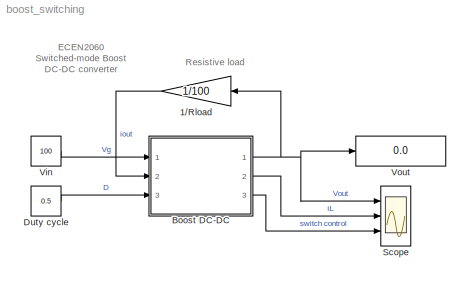
MODEL boost_switching
KIND model
BLOCK [Gain] 1//Rload
  Gain = 1/100
  OutDataTypeMode = Inherit via internal rule
  ParameterDataTypeMode = Inherit via internal rule
  SaturateOnIntegerOverflow = off
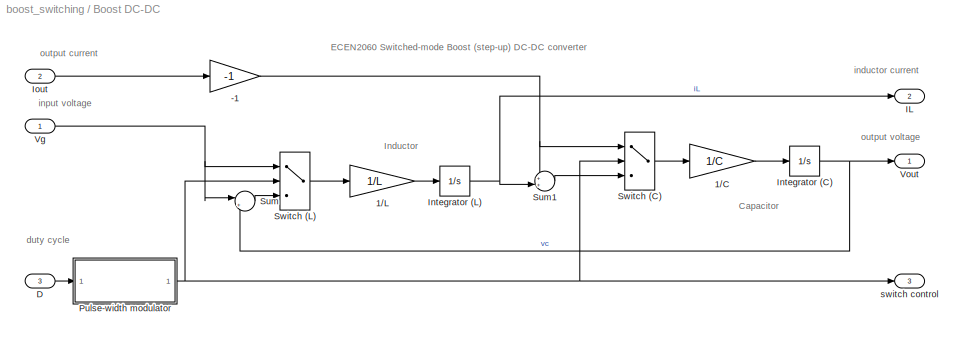
BLOCK [SubSystem] Boost DC-DC
  FunctionWithSeparateData = off
  MaskCallbackString = ||||
  MaskDescription = Switched-mode Boost (step-up) DC-DC converter (switching). The duty-cycle D determines the step-up voltage conversion ratio, Vout/Vg = 1/(1-D). The model is ideal, losses are neglected, efficiency is 100%
  MaskDisplay = text(0.5,0.75,'Boost','horizontalAlignment', 'center');\ntext(0.5,0.6,'DC-DC','horizontalAlignment', 'center');\ntext(0.5,0.45,'(switching)','horizontalAlignment', 'center');
  MaskEnableString = on,on,on,on,on
  MaskHideContents = off
  MaskIconFrame = on
  MaskIconOpaque = off
  MaskIconRotate = none
  MaskIconUnits = normalized
  MaskPromptString = Inductance|Initial inductor current|Capacitance|Initial capacitor voltage|Switching frequency
  MaskStyleString = edit,edit,edit,edit,edit
  MaskTabNameString = ,,,,
  MaskToolTipString = on,on,on,on,on
  MaskTunableValueString = on,on,on,on,on
  MaskValueString = 200e-6|4|10e-6|200|100e3
  MaskVarAliasString = ,,,,
  MaskVariables = L=@1;Io=@2;C=@3;Vo=@4;fs=@5;
  MaskVisibilityString = on,on,on,on,on
  MinAlgLoopOccurrences = off
  Ports = [3, 3]
  RTWSystemCode = Auto
BLOCK [Gain] Boost DC-DC/-1
  Gain = -1
  OutDataTypeMode = Inherit via internal rule
  ParameterDataTypeMode = Inherit via internal rule
  SaturateOnIntegerOverflow = off
BLOCK [Gain] Boost DC-DC/1//C
  Gain = 1/C
  OutDataTypeMode = Inherit via internal rule
  ParameterDataTypeMode = Inherit via internal rule
  SaturateOnIntegerOverflow = off
BLOCK [Gain] Boost DC-DC/1//L
  Gain = 1/L
  OutDataTypeMode = Inherit via internal rule
  ParameterDataTypeMode = Inherit via internal rule
  SaturateOnIntegerOverflow = off
BLOCK [Inport] Boost DC-DC/D
  IconDisplay = Port number
  Port = 3
BLOCK [Outport] Boost DC-DC/IL
  BusOutputAsStruct = off
  IconDisplay = Port number
  Port = 2
BLOCK [Integrator] Boost DC-DC/Integrator (C)
  IgnoreLimit = off
  InitialCondition = Vo
  Ports = [1, 1]
BLOCK [Integrator] Boost DC-DC/Integrator (L)
  IgnoreLimit = off
  InitialCondition = Io
  Ports = [1, 1]
BLOCK [Inport] Boost DC-DC/Iout
  IconDisplay = Port number
  Port = 2
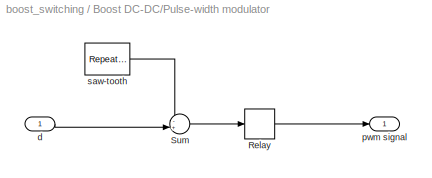
BLOCK [SubSystem] Boost DC-DC/Pulse-width modulator
  FunctionWithSeparateData = off
  MaskEnableString = on
  MaskHideContents = off
  MaskIconFrame = on
  MaskIconOpaque = on
  MaskIconRotate = none
  MaskIconUnits = autoscale
  MaskPromptString = Switching frequency
  MaskStyleString = edit
  MaskToolTipString = on
  MaskTunableValueString = on
  MaskValueString = fs
  MaskVariables = Fs=@1;
  MaskVisibilityString = on
  MinAlgLoopOccurrences = off
  Ports = [1, 1]
  RTWSystemCode = Auto
BLOCK [Relay] Boost DC-DC/Pulse-width modulator/Relay
BLOCK [Sum] Boost DC-DC/Pulse-width modulator/Sum
  IconShape = round
  InputSameDT = off
  Inputs = -+|
  OutDataTypeMode = Inherit via internal rule
  Ports = [2, 1]
  SaturateOnIntegerOverflow = off
BLOCK [Inport] Boost DC-DC/Pulse-width modulator/d
  IconDisplay = Port number
BLOCK [Outport] Boost DC-DC/Pulse-width modulator/pwm signal
  BusOutputAsStruct = off
  IconDisplay = Port number
BLOCK [Reference] Boost DC-DC/Pulse-width modulator/saw-tooth  REF=simulink/Sources/Repeating\nSequence
  FunctionWithSeparateData = off
  Ports = [0, 1]
  RTWMemSecDataConstants = Inherit from model
  RTWMemSecDataInternal = Inherit from model
  RTWMemSecDataParameters = Inherit from model
  RTWMemSecFuncExecute = Inherit from model
  RTWMemSecFuncInitTerm = Inherit from model
  ShowPortLabels = on
  SourceBlock = simulink/Sources/Repeating\nSequence
  SourceType = Repeating table
  SystemSampleTime = -1
  rep_seq_t = [0 1/Fs]
  rep_seq_y = [0 1]
BLOCK [Sum] Boost DC-DC/Sum
  IconShape = round
  InputSameDT = off
  Inputs = |+-
  OutDataTypeMode = Inherit via internal rule
  Ports = [2, 1]
  SaturateOnIntegerOverflow = off
BLOCK [Sum] Boost DC-DC/Sum1
  IconShape = round
  InputSameDT = off
  Inputs = ++|
  OutDataTypeMode = Inherit via internal rule
  Ports = [2, 1]
  SaturateOnIntegerOverflow = off
BLOCK [Switch] Boost DC-DC/Switch (C)
  InputSameDT = off
  SaturateOnIntegerOverflow = off
  Threshold = 0.5
BLOCK [Switch] Boost DC-DC/Switch (L)
  InputSameDT = off
  SaturateOnIntegerOverflow = off
  Threshold = 0.5
BLOCK [Inport] Boost DC-DC/Vg
  IconDisplay = Port number
BLOCK [Outport] Boost DC-DC/Vout
  BusOutputAsStruct = off
  IconDisplay = Port number
BLOCK [Outport] Boost DC-DC/switch control
  BusOutputAsStruct = off
  IconDisplay = Port number
  Port = 3
BLOCK [Constant] Duty cycle
  ConRadixGroup = Use specified scaling
  FramePeriod = inf
  OutDataType = sfix(16)
  OutDataTypeMode = Inherit from 'Constant value'
  OutScaling = 2^0
  SampleTime = inf
  SamplingMode = Sample based
  Value = 0.5
  VectorParams1D = on
BLOCK [Scope] Scope
  DataFormat = StructureWithTime
  Floating = off
  LimitDataPoints = off
  NumInputPorts = 3
  Ports = [3]
  SampleTime = 0
  TimeRange = 0.01
  YMax = 220~8~1.5
  YMin = 180~0~-0.5
  ZoomMode = xonly
BLOCK [Constant] Vin
  ConRadixGroup = Use specified scaling
  FramePeriod = inf
  OutDataType = sfix(16)
  OutDataTypeMode = Inherit from 'Constant value'
  OutScaling = 2^0
  SampleTime = inf
  SamplingMode = Sample based
  Value = 100
  VectorParams1D = on
BLOCK [Display] Vout
  Decimation = 1
  Lockdown = off
  Ports = [1]
ANNOTATION (root): ECEN2060\nSwitched-mode Boost\nDC-DC converter
ANNOTATION (root): Resistive load
ANNOTATION Boost DC-DC: Capacitor
ANNOTATION Boost DC-DC: ECEN2060 Switched-mode Boost (step-up) DC-DC converter
ANNOTATION Boost DC-DC: Inductor
ANNOTATION Boost DC-DC: duty cycle
ANNOTATION Boost DC-DC: inductor current
ANNOTATION Boost DC-DC: input voltage
ANNOTATION Boost DC-DC: output current
ANNOTATION Boost DC-DC: output voltage
LINE 1//Rload:1 -> Boost DC-DC:2
NET Boost DC-DC/-1:1 -> Boost DC-DC/Sum1:1, Boost DC-DC/Switch (C):1
LINE Boost DC-DC/1//C:1 -> Boost DC-DC/Integrator (C):1
LINE Boost DC-DC/1//L:1 -> Boost DC-DC/Integrator (L):1
LINE Boost DC-DC/D:1 -> Boost DC-DC/Pulse-width modulator:1
NET Boost DC-DC/Integrator (C):1 -> Boost DC-DC/Sum:2, Boost DC-DC/Vout:1
NET Boost DC-DC/Integrator (L):1 -> Boost DC-DC/IL:1, Boost DC-DC/Sum1:2
LINE Boost DC-DC/Iout:1 -> Boost DC-DC/-1:1
LINE Boost DC-DC/Pulse-width modulator/Relay:1 -> Boost DC-DC/Pulse-width modulator/pwm signal:1
LINE Boost DC-DC/Pulse-width modulator/Sum:1 -> Boost DC-DC/Pulse-width modulator/Relay:1
LINE Boost DC-DC/Pulse-width modulator/d:1 -> Boost DC-DC/Pulse-width modulator/Sum:2
LINE Boost DC-DC/Pulse-width modulator/saw-tooth:1 -> Boost DC-DC/Pulse-width modulator/Sum:1
NET Boost DC-DC/Pulse-width modulator:1 -> Boost DC-DC/Switch (C):2, Boost DC-DC/Switch (L):2, Boost DC-DC/switch control:1
LINE Boost DC-DC/Sum1:1 -> Boost DC-DC/Switch (C):3
LINE Boost DC-DC/Sum:1 -> Boost DC-DC/Switch (L):3
LINE Boost DC-DC/Switch (C):1 -> Boost DC-DC/1//C:1
LINE Boost DC-DC/Switch (L):1 -> Boost DC-DC/1//L:1
NET Boost DC-DC/Vg:1 -> Boost DC-DC/Sum:1, Boost DC-DC/Switch (L):1
NET Boost DC-DC:1 -> 1//Rload:1, Scope:1, Vout:1
LINE Boost DC-DC:2 -> Scope:2
LINE Boost DC-DC:3 -> Scope:3
LINE Duty cycle:1 -> Boost DC-DC:3
LINE Vin:1 -> Boost DC-DC:1
note: NET lines group one-source signal fan-out (src -> all destinations, sorted); 1:1 wires keep LINE
